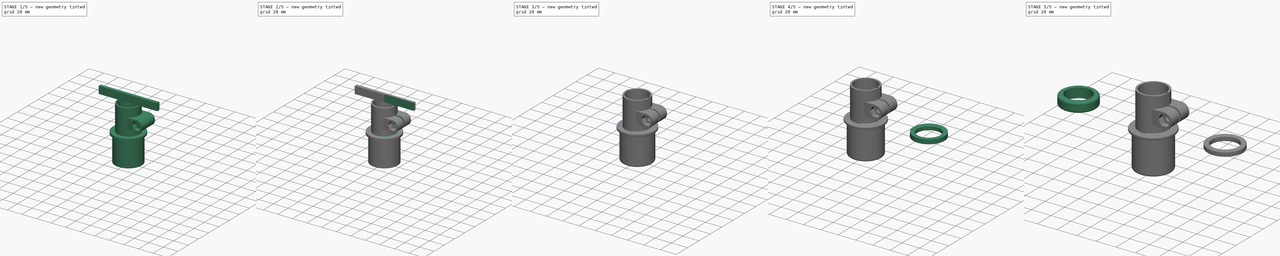
[diagram: build sequence overview — one tinted view per stage of 5, left to right]
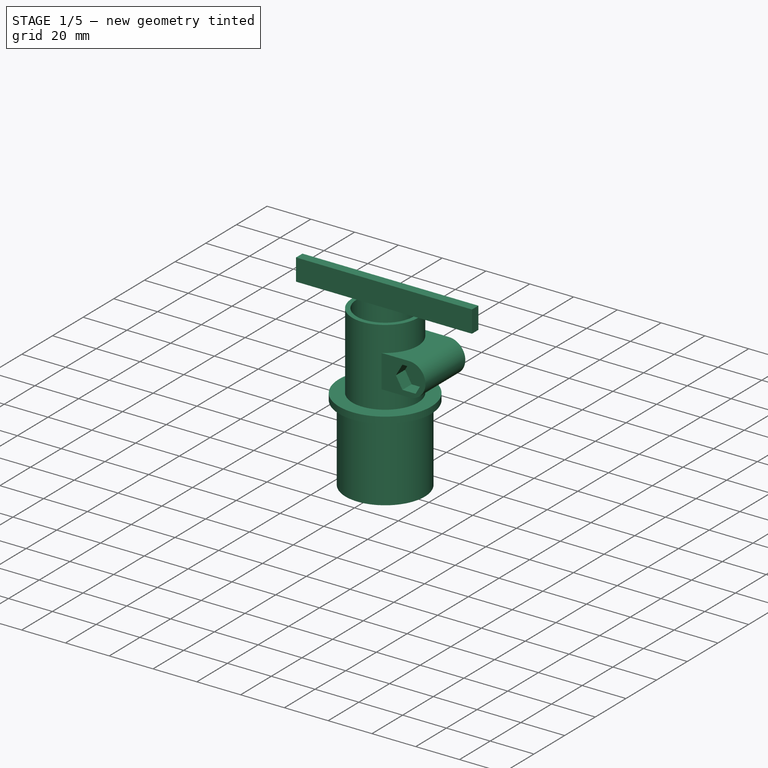
[diagram: stage 1 of 5 — iso view after this stage's code; geometry added in this stage tinted green]
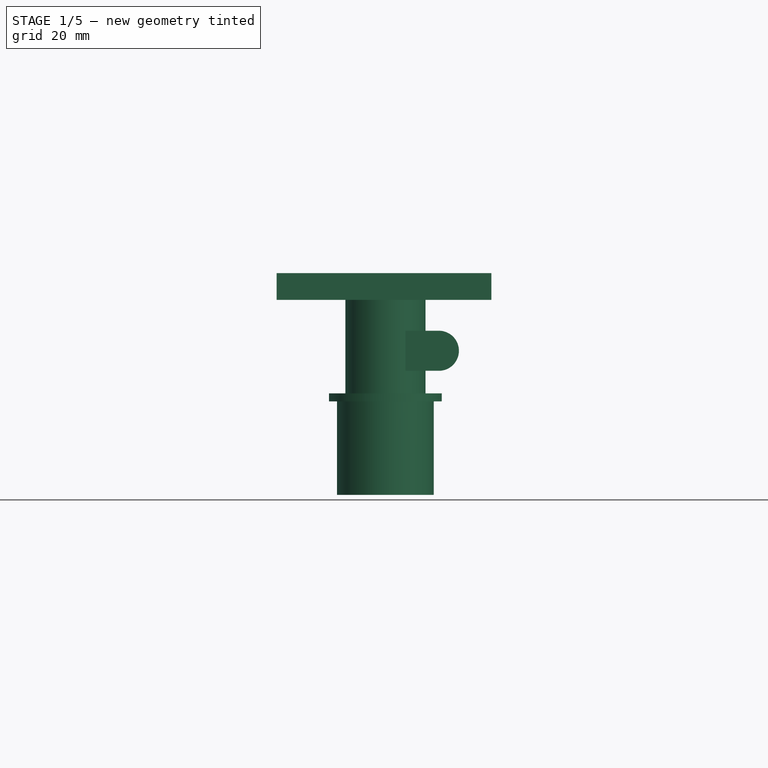
[diagram: stage 1 of 5 — front view after this stage's code; geometry added in this stage tinted green]
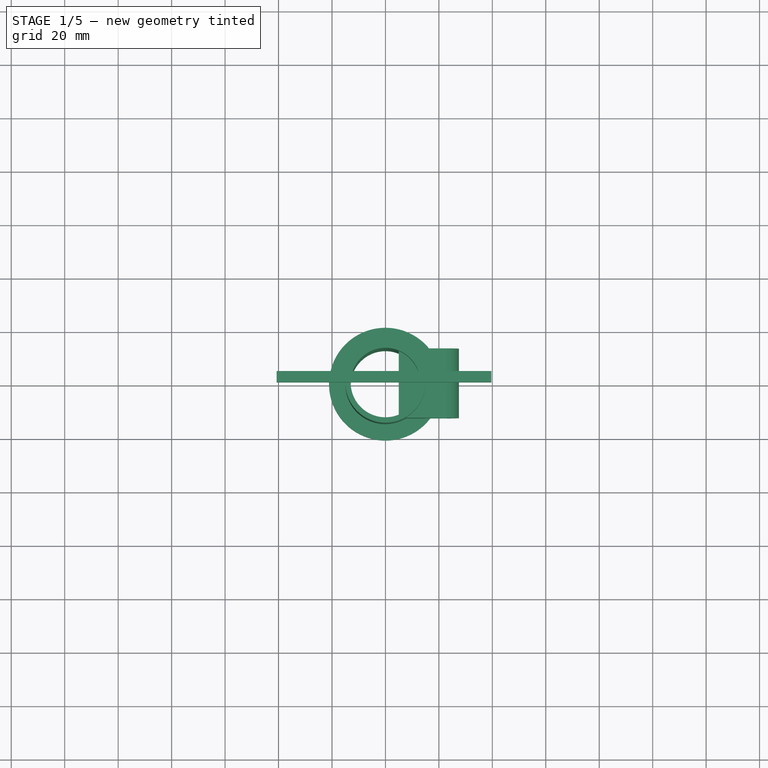
[diagram: stage 1 of 5 — top view after this stage's code; geometry added in this stage tinted green]
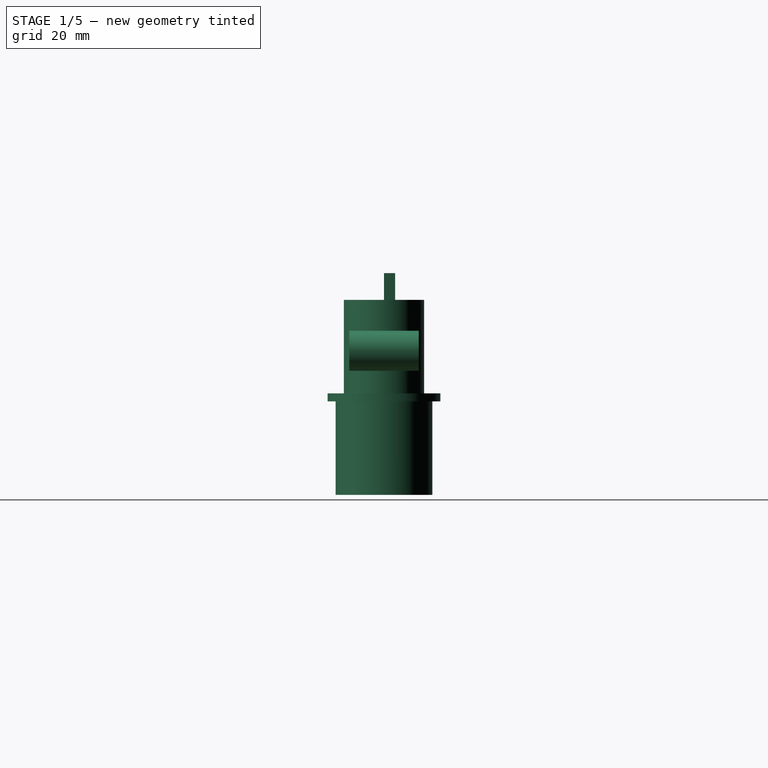
[diagram: stage 1 of 5 — right view after this stage's code; geometry added in this stage tinted green]
FCSTD DOCUMENT  (FreeCAD 0.16R6712 (Git))
Label: Porte plateau
License: All rights reserved
LicenseURL: http://en.wikipedia.org/wiki/All_rights_reserved
objects: Sketcher::SketchObject×11, PartDesign::Fillet×8, PartDesign::Pocket×6, PartDesign::Pad×4, PartDesign::Revolution×1, PartDesign::Mirrored×1
note: 42 computed .brp shape members not serialized (recipe doc carries the construction recipe); baked Part::Feature solids carry a one-line shape summary decoded from their .brp

FEATURE [Sketcher::SketchObject] Sketch
  Placement = pos=(0,0,0) rot=(1,0,0;1.5708rad)
  sketch-geometry (8):
    g0: LineSegment StartX=13 StartY=35 StartZ=0 EndX=13 EndY=-38 EndZ=0
    g1: LineSegment StartX=13 StartY=-38 StartZ=0 EndX=18.1 EndY=-38 EndZ=0
    g2: LineSegment StartX=18.1 StartY=-38 StartZ=0 EndX=18.1 EndY=-3 EndZ=0
    g3: LineSegment StartX=13 StartY=35 StartZ=0 EndX=15 EndY=35 EndZ=0
    g4: LineSegment StartX=15 StartY=35 StartZ=0 EndX=15 EndY=0 EndZ=0
    g5: LineSegment StartX=15 StartY=0 StartZ=0 EndX=21.1 EndY=0 EndZ=0
    g6: LineSegment StartX=18.1 StartY=-3 StartZ=0 EndX=21.1 EndY=-3 EndZ=0
    g7: LineSegment StartX=21.1 StartY=-3 StartZ=0 EndX=21.1 EndY=0 EndZ=0
  constraints (24):
    c: Vertical(g0)
    c: Coincident(g0,g1)
    c: Horizontal(g1)
    c: Coincident(g1,g2)
    c: Vertical(g2)
    c: Coincident(g0,g3)
    c: Horizontal(g3)
    c: Coincident(g3,g4)
    c: Vertical(g4)
    c: Coincident(g4,g5)
    c: Horizontal(g5)
    c: Coincident(g6,g2)
    c: Horizontal(g6)
    c: Coincident(g7,g6)
    c: Coincident(g7,g5)
    c: Vertical(g7)
    c: DistanceX(g-1,g0) = 13
    c: DistanceX(g-1,g1) = 18.1
    c: DistanceY(g1,g2) = 35
    c: DistanceY(g6,g5) = 3
    c: DistanceY(g4,g3) = 35
    c: PointOnObject(g4,g-1)
    c: DistanceX(g0,g3) = 2
    c: DistanceX(g2,g6) = 3
FEATURE [PartDesign::Revolution] Revolution  label="Cylindre"
  Angle = 360
  Axis = (0,0,1)
  Base = (0,0,0)
  Placement = pos=(0,0,0) rot=(1,0,0;1.5708rad)
  ReferenceAxis = -> Sketch [V_Axis]
  Reversed = true
  Sketch = -> Sketch
FEATURE [Sketcher::SketchObject] Sketch001
  Placement = pos=(0,0,35) rot=(0,0,1;3.14159rad)
  Support = -> Revolution [Face8]
  sketch-geometry (4):
    g0: LineSegment StartX=-39.6444 StartY=0 StartZ=0 EndX=40.704 EndY=0 EndZ=0
    g1: LineSegment StartX=40.704 StartY=0 StartZ=0 EndX=40.704 EndY=-4.16347 EndZ=0
    g2: LineSegment StartX=40.704 StartY=-4.16347 StartZ=0 EndX=-39.6444 EndY=-4.16347 EndZ=0
    g3: LineSegment StartX=-39.6444 StartY=-4.16347 StartZ=0 EndX=-39.6444 EndY=0 EndZ=0
  constraints (9):
    c: Coincident(g0,g1)
    c: Coincident(g1,g2)
    c: Coincident(g2,g3)
    c: Coincident(g3,g0)
    c: Horizontal(g0)
    c: Horizontal(g2)
    c: Vertical(g1)
    c: Vertical(g3)
    c: PointOnObject(g0,g-1)
FEATURE [PartDesign::Pad] Pad  label="Baguette de plan"
  Length = 10
  Length2 = 100
  Placement = pos=(0,0,0) rot=(1,0,0;1.5708rad)
  Sketch = -> Sketch001
  Type = 0
FEATURE [Sketcher::SketchObject] Sketch002
  ExternalGeometry = -> [Pad]
  Placement = pos=(0,0,0) rot=(1,0,0;1.5708rad)
  Support = -> Pad [Face8]
  sketch-geometry (5):
    g0: LineSegment StartX=20 StartY=23.436 StartZ=0 EndX=5 EndY=23.436 EndZ=0
    g1: LineSegment StartX=5 StartY=23.436 StartZ=0 EndX=5 EndY=8.436 EndZ=0
    g2: LineSegment StartX=5 StartY=8.436 StartZ=0 EndX=20 EndY=8.436 EndZ=0
    g3: LineSegment [constr] StartX=20 StartY=23.436 StartZ=0 EndX=20 EndY=8.436 EndZ=0
    g4: ArcOfCircle CenterX=20 CenterY=15.936 CenterZ=0 NormalX=0 NormalY=0 NormalZ=1 Radius=7.5 StartAngle=4.71239 EndAngle=7.85398
  constraints (15):
    c: Horizontal(g0)
    c: Coincident(g0,g1)
    c: Vertical(g1)
    c: Coincident(g1,g2)
    c: Horizontal(g2)
    c: Coincident(g3,g0)
    c: Coincident(g3,g2)
    c: Vertical(g3)
    c: PointOnObject(g4,g3)
    c: Coincident(g4,g0)
    c: Coincident(g4,g2)
    c: DistanceY(g1,g0) = 15
    c: DistanceX(g0,g0) = 15
    c: DistanceY(g0,g-3) = 11.564
    c: DistanceX(g0,g-3) = 10
FEATURE [PartDesign::Pad] Pad001  label="Porte vis"
  Length = 26
  Length2 = 100
  Midplane = true
  Placement = pos=(0,0,0) rot=(1,0,0;1.5708rad)
  Sketch = -> Sketch002
  Type = 0
FEATURE [Sketcher::SketchObject] Sketch003
  ExternalGeometry = -> [Pad001]
  Placement = pos=(0,-13,0) rot=(1,0,0;1.5708rad)
  Support = -> Pad001 [Face21]
  sketch-geometry (12):
    g0: LineSegment StartX=23.0022 StartY=10.736 StartZ=0 EndX=26.0044 EndY=15.936 EndZ=0
    g1: LineSegment StartX=26.0044 StartY=15.936 StartZ=0 EndX=23.0022 EndY=21.136 EndZ=0
    g2: LineSegment StartX=23.0022 StartY=21.136 StartZ=0 EndX=16.9978 EndY=21.136 EndZ=0
    g3: LineSegment StartX=16.9978 StartY=21.136 StartZ=0 EndX=13.9956 EndY=15.936 EndZ=0
    g4: LineSegment StartX=13.9956 StartY=15.936 StartZ=0 EndX=16.9978 EndY=10.736 EndZ=0
    g5: LineSegment StartX=16.9978 StartY=10.736 StartZ=0 EndX=23.0022 EndY=10.736 EndZ=0
    g6: Circle [constr] CenterX=20 CenterY=15.936 CenterZ=0 NormalX=0 NormalY=0 NormalZ=1 Radius=6.00444
    g7: LineSegment [constr] StartX=7.48331 StartY=23.436 StartZ=0 EndX=20 EndY=8.436 EndZ=0
    g8: LineSegment [constr] StartX=7.48331 StartY=8.436 StartZ=0 EndX=20 EndY=23.436 EndZ=0
    g9: LineSegment [constr] StartX=20 StartY=23.436 StartZ=0 EndX=20 EndY=8.436 EndZ=0
    g10: GeomPoint [constr] X=13.7417 Y=15.936 Z=0
    g11: LineSegment [constr] StartX=13.7417 StartY=15.936 StartZ=0 EndX=20 EndY=15.936 EndZ=0
  constraints (27):
    c: Coincident(g0,g1)
    c: Coincident(g1,g2)
    c: Coincident(g2,g3)
    c: Coincident(g3,g4)
    c: Coincident(g4,g5)
    c: Coincident(g5,g0)
    c: Equal(g0, g1-g5) x5
    c: PointOnObject(g0,g6)
    c: PointOnObject(g1,g6)
    c: PointOnObject(g2,g6)
    c: PointOnObject(g3,g6)
    c: PointOnObject(g4,g6)
    c: PointOnObject(g5,g6)
    c: Coincident(g7,g-3)
    c: Coincident(g7,g-4)
    c: Coincident(g8,g-4)
    c: Coincident(g8,g-3)
    c: Coincident(g9,g8)
    c: Coincident(g9,g7)
    c: PointOnObject(g10,g7)
    c: PointOnObject(g10,g8)
    c: Coincident(g11,g10)
    c: PointOnObject(g11,g9)
    c: Horizontal(g11)
    c: Coincident(g6,g11)
    c: PointOnObject(g3,g11)
    c: DistanceY(g0,g1) = 10.4
FEATURE [PartDesign::Pocket] Pocket  label="Ecrou"
  Length = 6
  Placement = pos=(0,0,0) rot=(1,0,0;1.5708rad)
  Sketch = -> Sketch003
  Type = 0
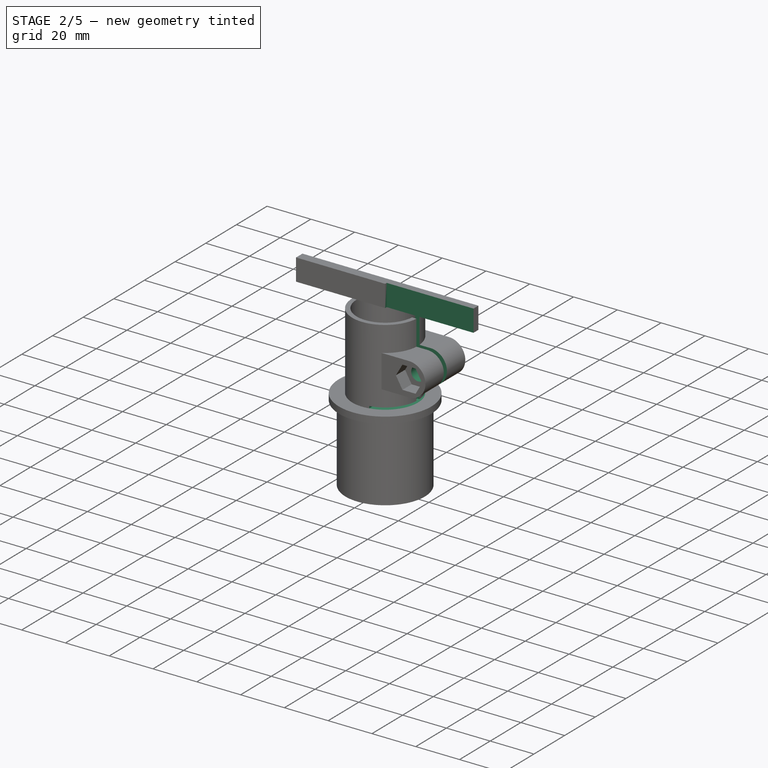
[diagram: stage 2 of 5 — iso view after this stage's code; geometry added in this stage tinted green]
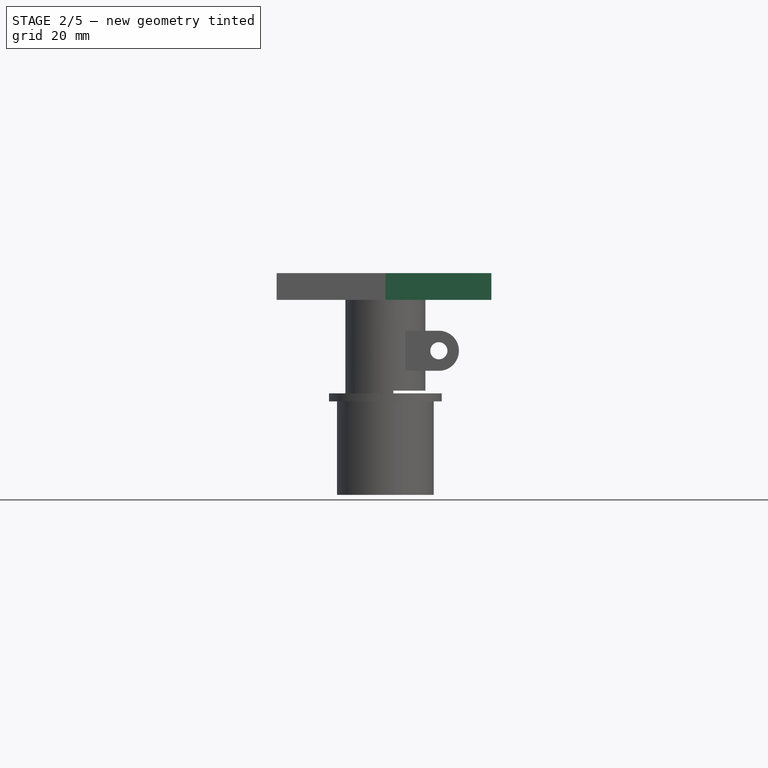
[diagram: stage 2 of 5 — front view after this stage's code; geometry added in this stage tinted green]
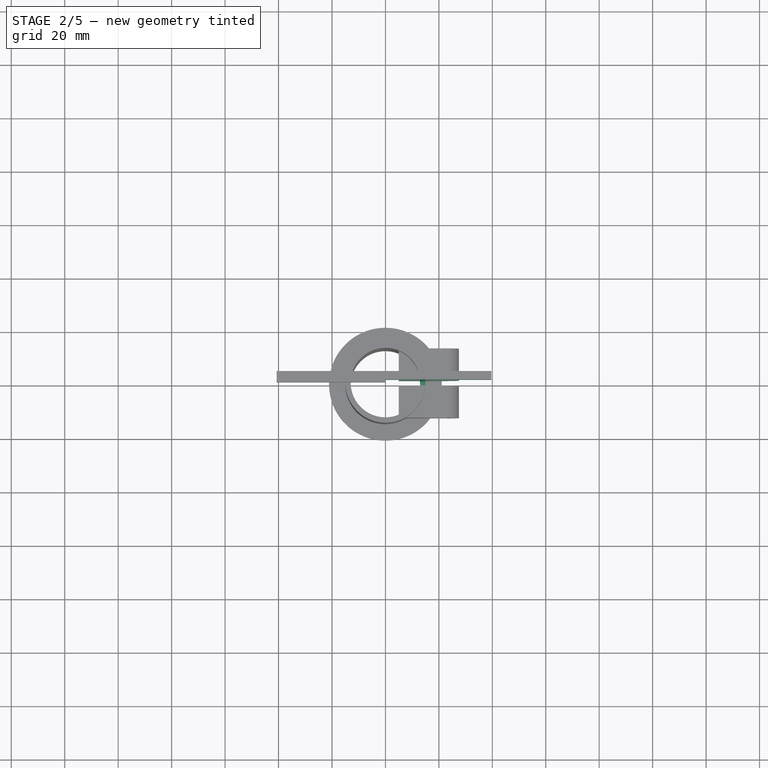
[diagram: stage 2 of 5 — top view after this stage's code; geometry added in this stage tinted green]
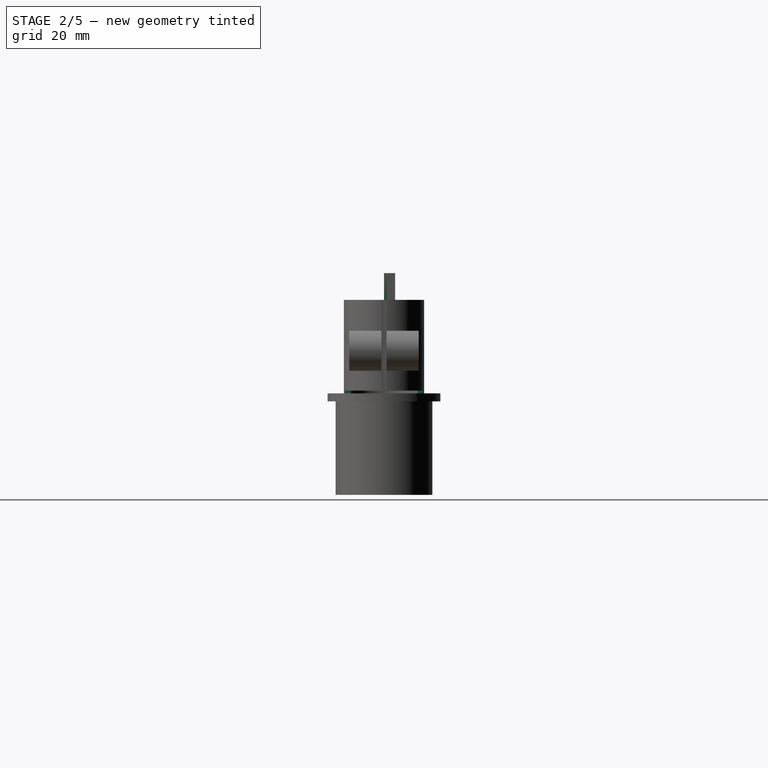
[diagram: stage 2 of 5 — right view after this stage's code; geometry added in this stage tinted green]
FEATURE [PartDesign::Mirrored] Mirrored
  MirrorPlane = -> Pocket [Face11]
  Originals = -> [Pocket]
  Placement = pos=(0,0,0) rot=(1,0,0;1.5708rad)
FEATURE [Sketcher::SketchObject] Sketch004
  ExternalGeometry = -> [Mirrored]
  Placement = pos=(0,-13,0) rot=(1,0,0;1.5708rad)
  Support = -> Mirrored [Face21]
  sketch-geometry (4):
    g0: LineSegment [constr] StartX=16.9978 StartY=21.136 StartZ=0 EndX=23.0022 EndY=10.736 EndZ=0
    g1: LineSegment [constr] StartX=16.9978 StartY=10.736 StartZ=0 EndX=23.0022 EndY=21.136 EndZ=0
    g2: GeomPoint [constr] X=20 Y=15.936 Z=0
    g3: Circle CenterX=20 CenterY=15.936 CenterZ=0 NormalX=0 NormalY=0 NormalZ=1 Radius=3.2
  constraints (8):
    c: Coincident(g0,g-3)
    c: Coincident(g0,g-4)
    c: Coincident(g1,g-4)
    c: Coincident(g1,g-3)
    c: PointOnObject(g2,g0)
    c: PointOnObject(g2,g1)
    c: Coincident(g3,g2)
    c: Radius(g3) = 3.2
FEATURE [PartDesign::Pocket] Pocket001  label="Puit"
  Length = 5
  Placement = pos=(0,0,0) rot=(1,0,0;1.5708rad)
  Sketch = -> Sketch004
  Type = 1
FEATURE [Sketcher::SketchObject] Sketch005
  Placement = pos=(0,0,0) rot=(0,0,1;3.14159rad)
  Support = -> Pocket001 [Face23]
  sketch-geometry (4):
    g0: LineSegment StartX=-40.0614 StartY=1 StartZ=0 EndX=0 EndY=1 EndZ=0
    g1: LineSegment StartX=0 StartY=1 StartZ=0 EndX=0 EndY=-1 EndZ=0
    g2: LineSegment StartX=0 StartY=-1 StartZ=0 EndX=-40.0614 EndY=-1 EndZ=0
    g3: LineSegment StartX=-40.0614 StartY=-1 StartZ=0 EndX=-40.0614 EndY=1 EndZ=0
  constraints (11):
    c: Coincident(g0,g1)
    c: Coincident(g1,g2)
    c: Coincident(g2,g3)
    c: Coincident(g3,g0)
    c: Horizontal(g0)
    c: Horizontal(g2)
    c: Vertical(g1)
    c: Vertical(g3)
    c: Symmetric(g0,g2,g-1)
    c: PointOnObject(g0,g-2)
    c: DistanceY(g2,g0) = 2
FEATURE [PartDesign::Pocket] Pocket002  label="Fente verticale"
  Length = 5
  Placement = pos=(0,0,0) rot=(1,0,0;1.5708rad)
  Reversed = true
  Sketch = -> Sketch005
  Type = 1
FEATURE [Sketcher::SketchObject] Sketch006
  Placement = pos=(0,0,0) rot=(0,0,1;3.14159rad)
  Support = -> Pocket002 [Face37]
  sketch-geometry (4):
    g0: LineSegment StartX=-3 StartY=16.6936 StartZ=0 EndX=-41.8768 EndY=16.6936 EndZ=0
    g1: LineSegment StartX=-41.8768 StartY=16.6936 StartZ=0 EndX=-41.8768 EndY=-16.6936 EndZ=0
    g2: LineSegment StartX=-41.8768 StartY=-16.6936 StartZ=0 EndX=-3 EndY=-16.6936 EndZ=0
    g3: LineSegment StartX=-3 StartY=-16.6936 StartZ=0 EndX=-3 EndY=16.6936 EndZ=0
  constraints (10):
    c: Coincident(g0,g1)
    c: Coincident(g1,g2)
    c: Coincident(g2,g3)
    c: Coincident(g3,g0)
    c: Horizontal(g0)
    c: Horizontal(g2)
    c: Vertical(g1)
    c: Vertical(g3)
    c: Symmetric(g0,g1,g-1)
    c: DistanceX(g0,g-1) = 3
FEATURE [PartDesign::Pocket] Pocket003  label="Fente horizontale"
  Length = 1
  Placement = pos=(0,0,0) rot=(1,0,0;1.5708rad)
  Reversed = true
  Sketch = -> Sketch006
  Type = 0
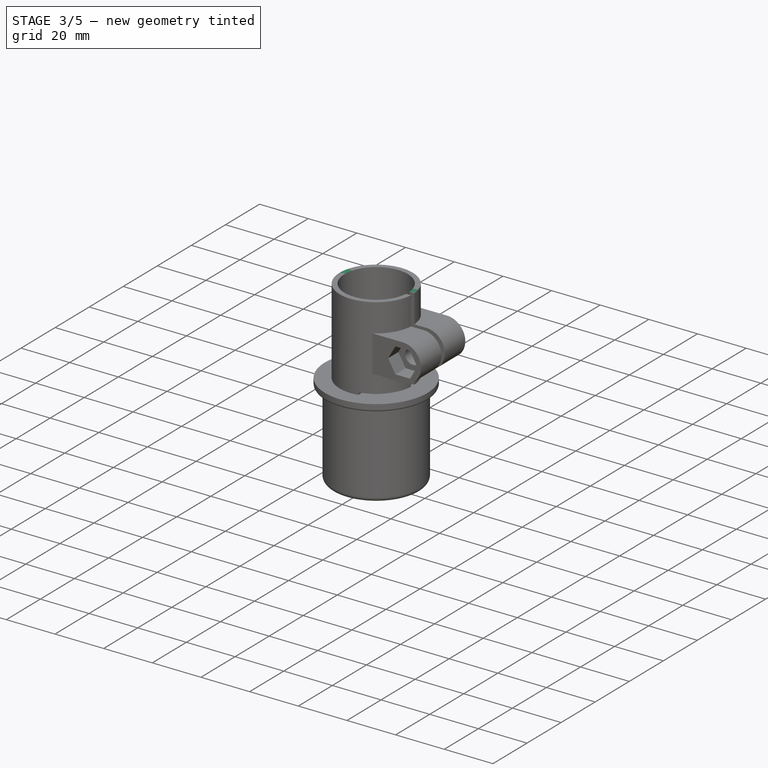
[diagram: stage 3 of 5 — iso view after this stage's code; geometry added in this stage tinted green]
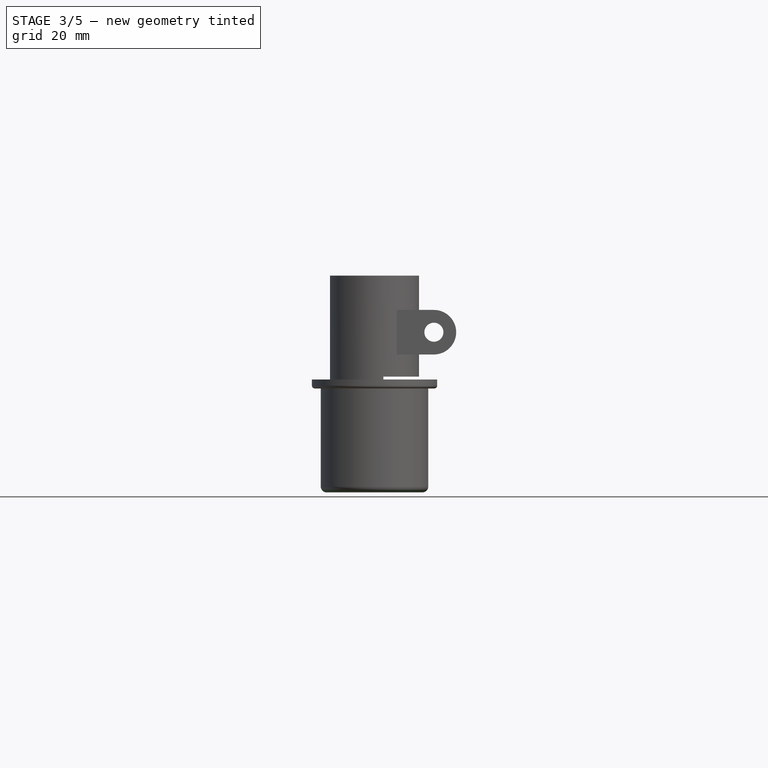
[diagram: stage 3 of 5 — front view after this stage's code; geometry added in this stage tinted green]
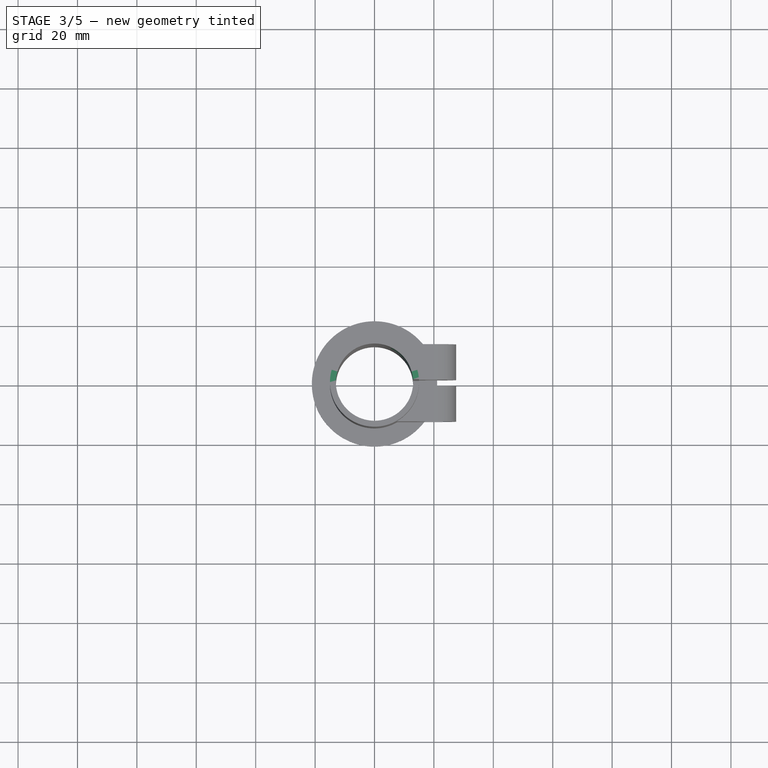
[diagram: stage 3 of 5 — top view after this stage's code; geometry added in this stage tinted green]
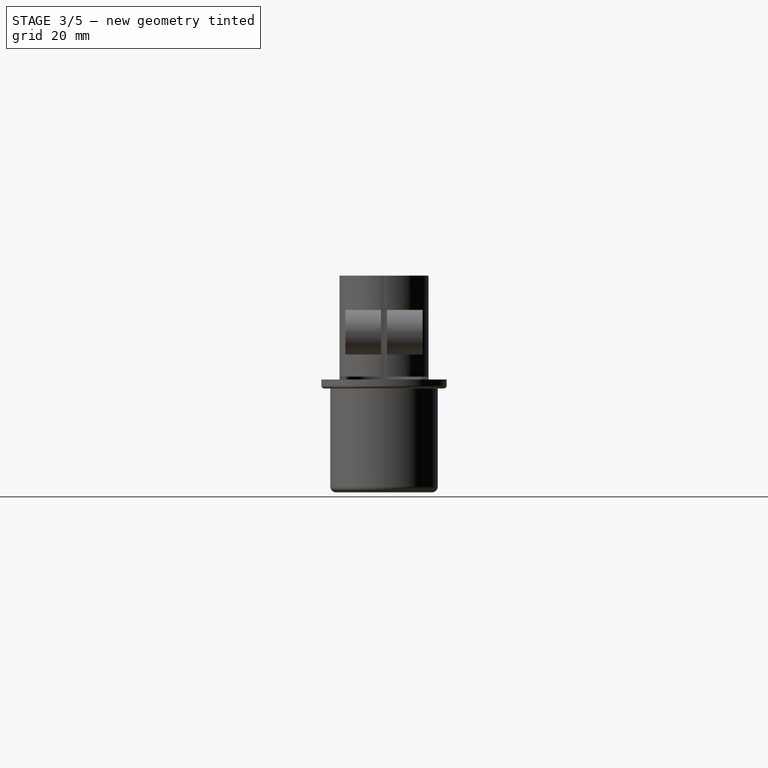
[diagram: stage 3 of 5 — right view after this stage's code; geometry added in this stage tinted green]
FEATURE [Sketcher::SketchObject] Sketch007
  ExternalGeometry = -> [Pocket003]
  Placement = pos=(0,0,-38) rot=(1,0,0;3.14159rad)
  Support = -> Pocket003 [Face1]
  sketch-geometry (1):
    g0: Circle CenterX=0 CenterY=0 CenterZ=0 NormalX=0 NormalY=0 NormalZ=1 Radius=13
  constraints (2):
    c: Coincident(g0,g-1)
    c: Tangent(g0,g-3)
FEATURE [PartDesign::Pocket] Pocket004  label="Puit central"
  Length = 5
  Placement = pos=(0,0,0) rot=(1,0,0;1.5708rad)
  Sketch = -> Sketch007
  Type = 1
FEATURE [Sketcher::SketchObject] Sketch008
  ExternalGeometry = -> [Pocket004]
  Placement = pos=(0,0,45) rot=(0,0,1;3.14159rad)
  Support = -> Pocket004 [Face35]
  sketch-geometry (4):
    g0: LineSegment StartX=-39.6444 StartY=0 StartZ=0 EndX=40.704 EndY=0 EndZ=0
    g1: LineSegment StartX=40.704 StartY=0 StartZ=0 EndX=40.704 EndY=-4.16347 EndZ=0
    g2: LineSegment StartX=40.704 StartY=-4.16347 StartZ=0 EndX=-39.6444 EndY=-4.16347 EndZ=0
    g3: LineSegment StartX=-39.6444 StartY=-4.16347 StartZ=0 EndX=-39.6444 EndY=0 EndZ=0
  constraints (10):
    c: Coincident(g0,g1)
    c: Coincident(g2,g3)
    c: Coincident(g3,g0)
    c: Horizontal(g0)
    c: Horizontal(g2)
    c: Vertical(g1)
    c: Vertical(g3)
    c: Coincident(g0,g-4)
    c: Coincident(g2,g1)
    c: Coincident(g2,g-3)
FEATURE [PartDesign::Pocket] Pocket005  label="Suppression baguette de plan"
  Length = 10
  Placement = pos=(0,0,0) rot=(1,0,0;1.5708rad)
  Sketch = -> Sketch008
  Type = 0
FEATURE [PartDesign::Fillet] Fillet005
  Base = -> Pocket005 [Edge1]
  Placement = pos=(0,0,0) rot=(1,0,0;1.5708rad)
  Radius = 2
FEATURE [PartDesign::Fillet] Fillet006
  Base = -> Fillet005 [Edge69]
  Placement = pos=(0,0,0) rot=(1,0,0;1.5708rad)
  Radius = 1
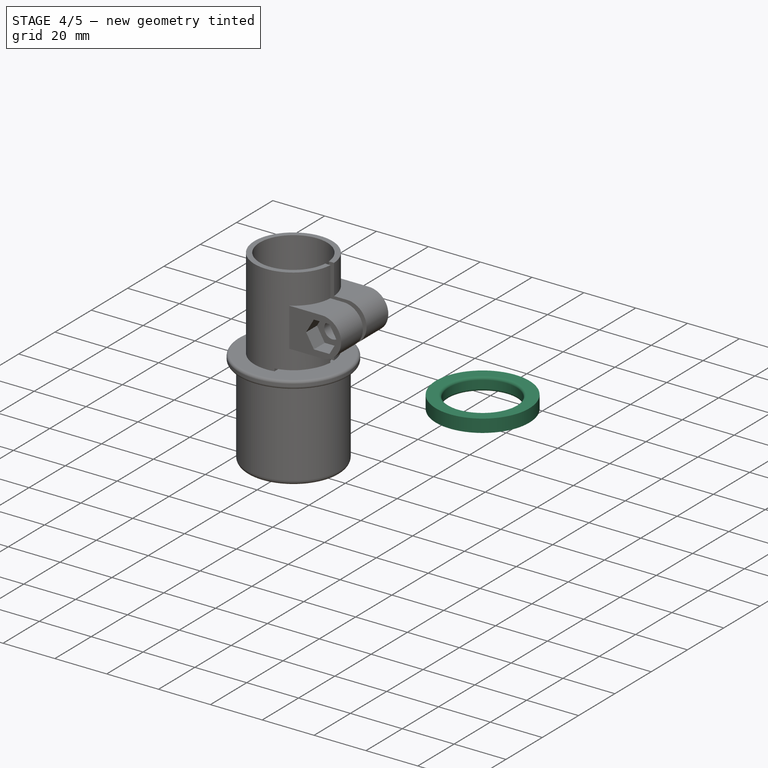
[diagram: stage 4 of 5 — iso view after this stage's code; geometry added in this stage tinted green]
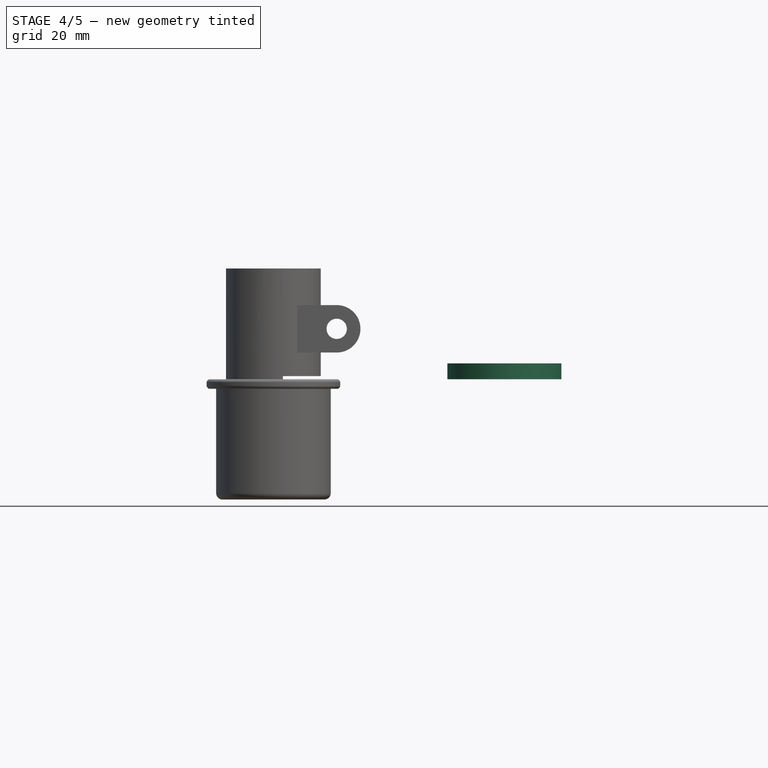
[diagram: stage 4 of 5 — front view after this stage's code; geometry added in this stage tinted green]
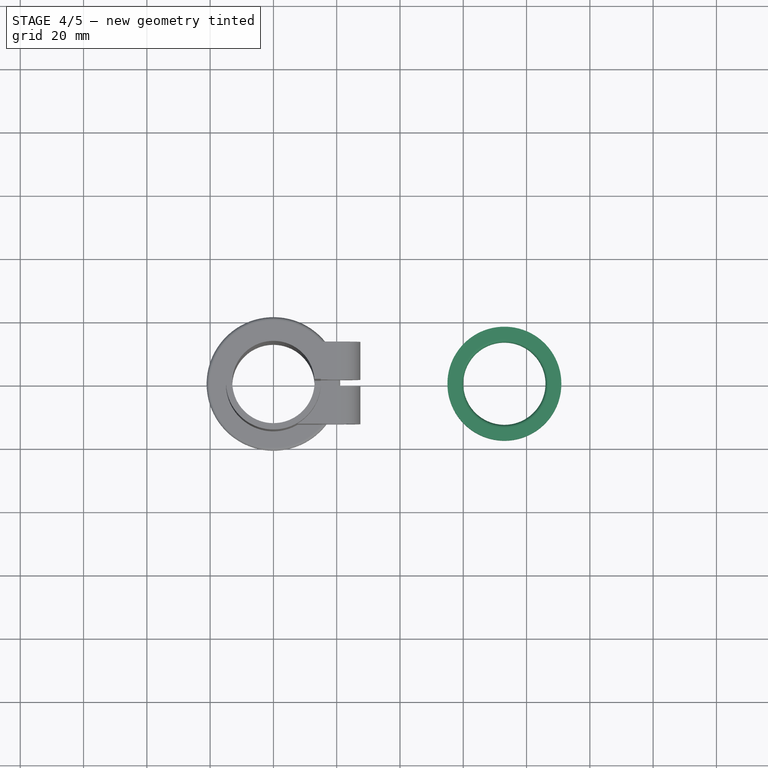
[diagram: stage 4 of 5 — top view after this stage's code; geometry added in this stage tinted green]
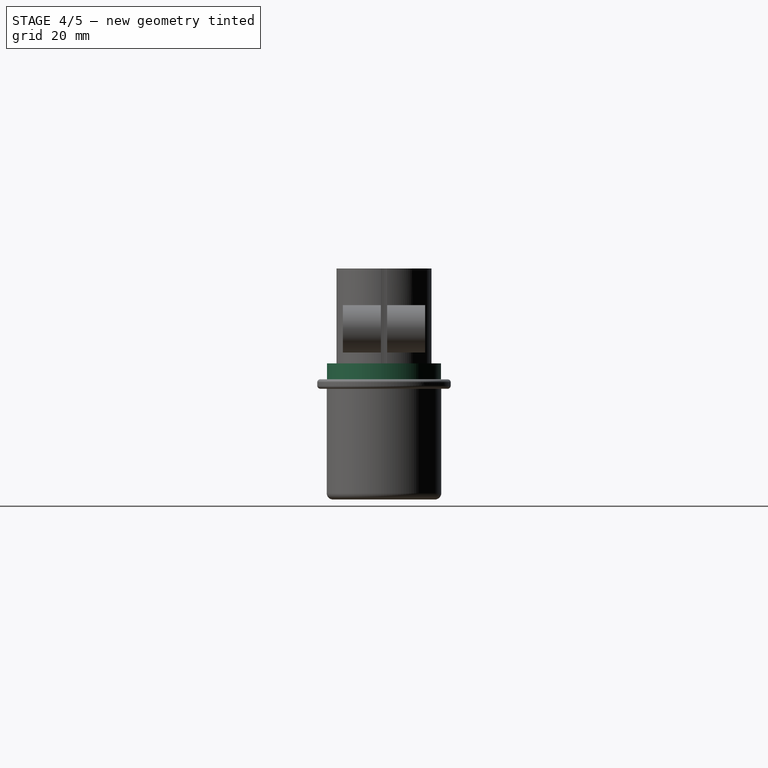
[diagram: stage 4 of 5 — right view after this stage's code; geometry added in this stage tinted green]
FEATURE [Sketcher::SketchObject] Sketch010
  sketch-geometry (2):
    g0: Circle CenterX=72.9888 CenterY=0 CenterZ=0 NormalX=0 NormalY=0 NormalZ=1 Radius=13
    g1: Circle CenterX=72.9888 CenterY=0 CenterZ=0 NormalX=0 NormalY=0 NormalZ=1 Radius=18
  constraints (4):
    c: PointOnObject(g0,g-1)
    c: Coincident(g1,g0)
    c: Radius(g0) = 13
    c: Radius(g1) = 18
FEATURE [PartDesign::Pad] Pad003  label="Proto"
  Length = 5
  Length2 = 100
  Sketch = -> Sketch010
  Type = 0
FEATURE [PartDesign::Fillet] Fillet002
  Base = -> Pad003 [Edge6]
  Radius = 1
FEATURE [PartDesign::Fillet] Fillet003
  Base = -> Fillet002 [Edge3]
  Radius = 1
FEATURE [PartDesign::Fillet] Fillet007
  Base = -> Fillet006 [Edge11,Edge9,Edge8,Edge10,Edge12]
  Placement = pos=(0,0,0) rot=(1,0,0;1.5708rad)
  Radius = 1
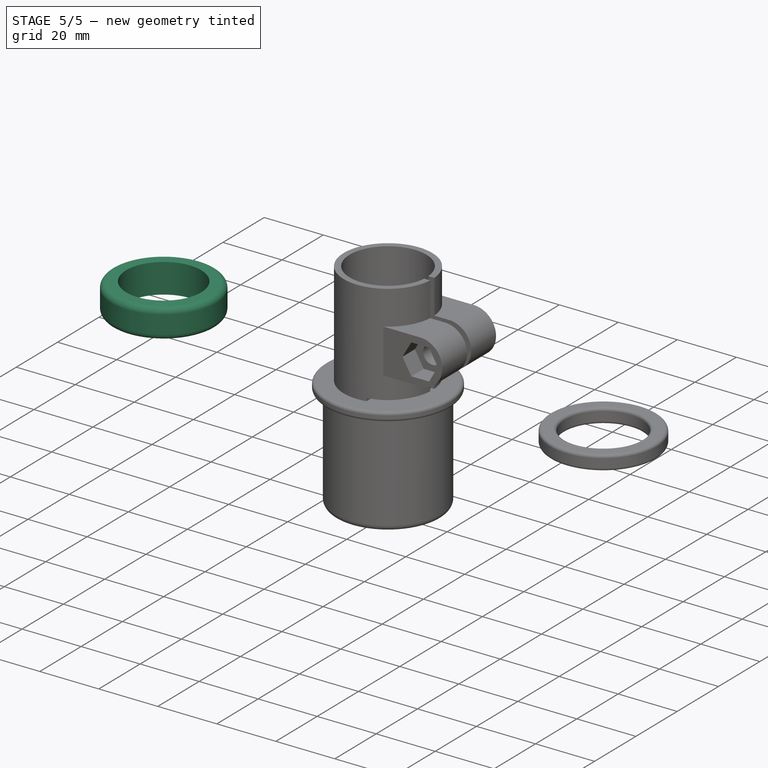
[diagram: stage 5 of 5 — iso view after this stage's code; geometry added in this stage tinted green]
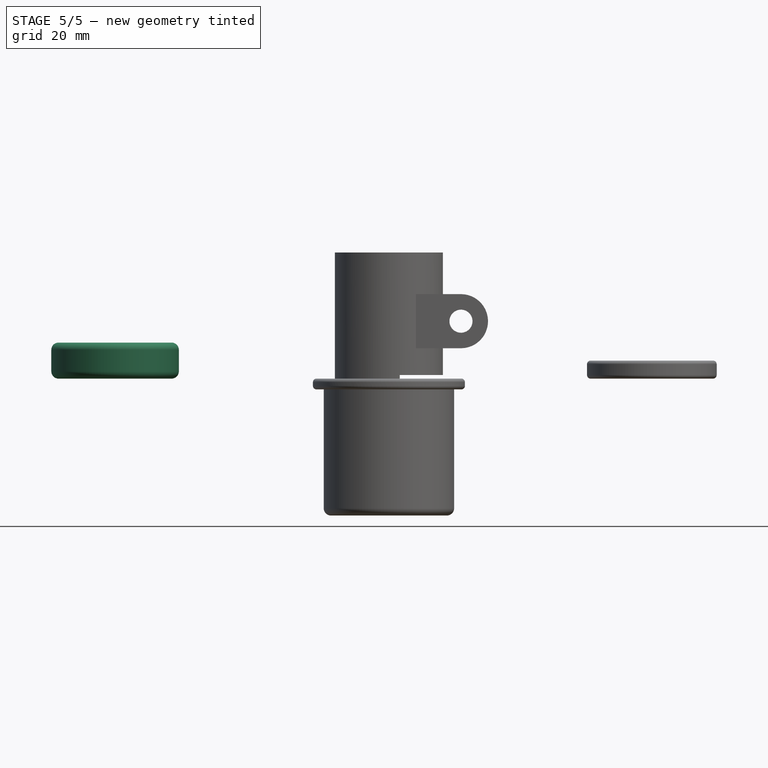
[diagram: stage 5 of 5 — front view after this stage's code; geometry added in this stage tinted green]
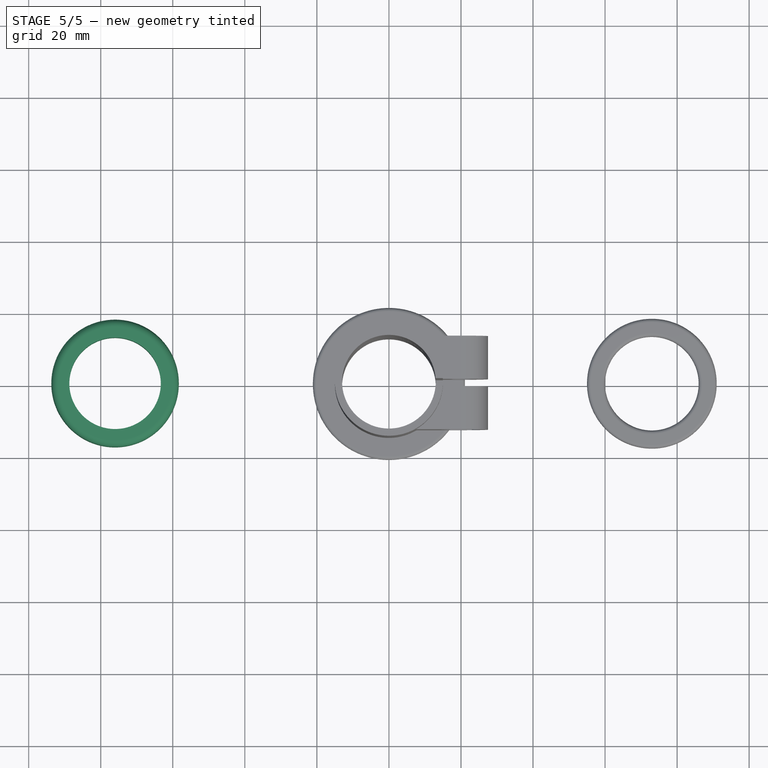
[diagram: stage 5 of 5 — top view after this stage's code; geometry added in this stage tinted green]
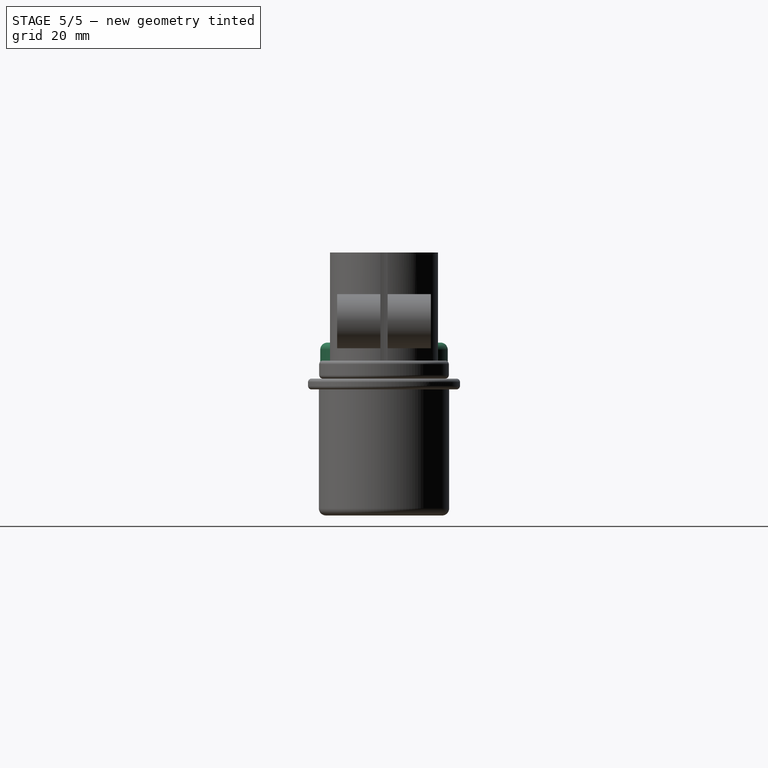
[diagram: stage 5 of 5 — right view after this stage's code; geometry added in this stage tinted green]
FEATURE [Sketcher::SketchObject] Sketch009
  sketch-geometry (2):
    g0: Circle CenterX=-76.0198 CenterY=0 CenterZ=0 NormalX=0 NormalY=0 NormalZ=1 Radius=12.7
    g1: Circle CenterX=-76.0198 CenterY=0 CenterZ=0 NormalX=0 NormalY=0 NormalZ=1 Radius=17.7
  constraints (4):
    c: PointOnObject(g0,g-1)
    c: Coincident(g1,g0)
    c: Radius(g0) = 12.7
    c: Radius(g1) = 17.7
FEATURE [PartDesign::Pad] Pad002  label="Bague"
  Length = 10
  Length2 = 100
  Sketch = -> Sketch009
  Type = 0
FEATURE [PartDesign::Fillet] Fillet
  Base = -> Pad002 [Edge3]
  Radius = 2
FEATURE [PartDesign::Fillet] Fillet001
  Base = -> Fillet [Edge3]
  Radius = 2
FEATURE [PartDesign::Fillet] Fillet004
  Base = -> Fillet003 [Edge9,Edge8]
  Radius = 1
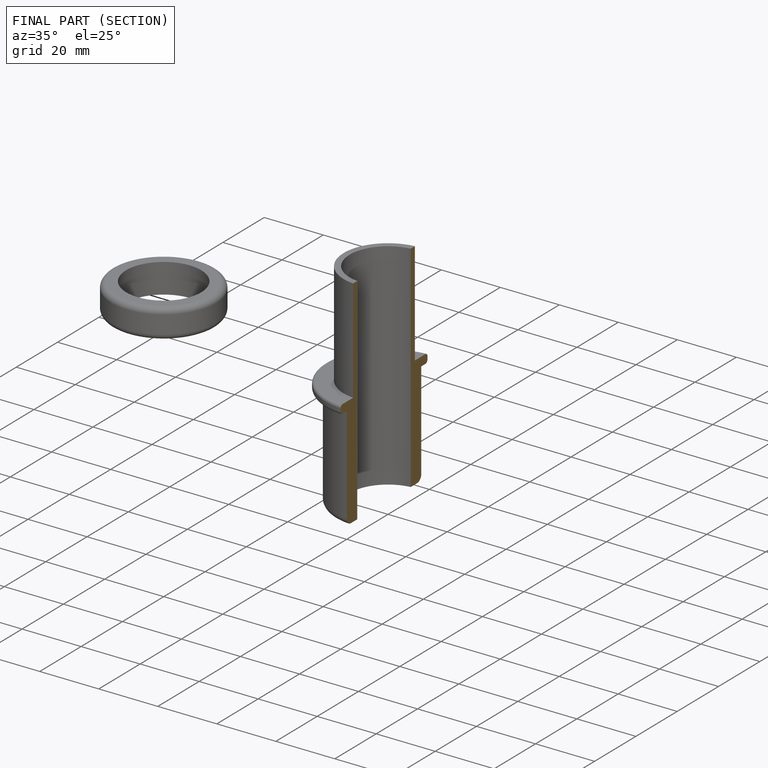
[diagram: finished part — half-section view (interior)]
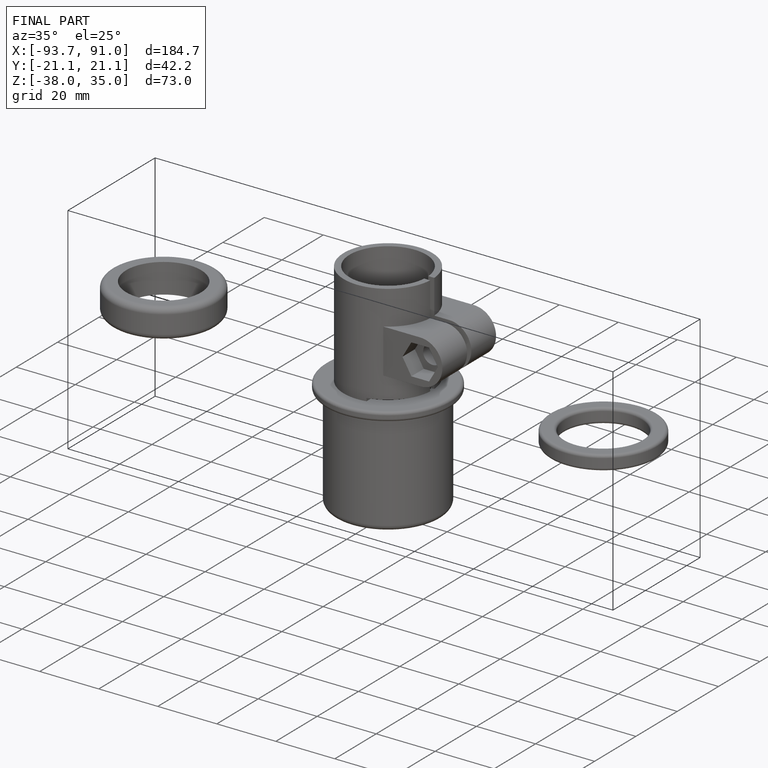
[diagram: finished part — iso view with bounding-box wireframe]
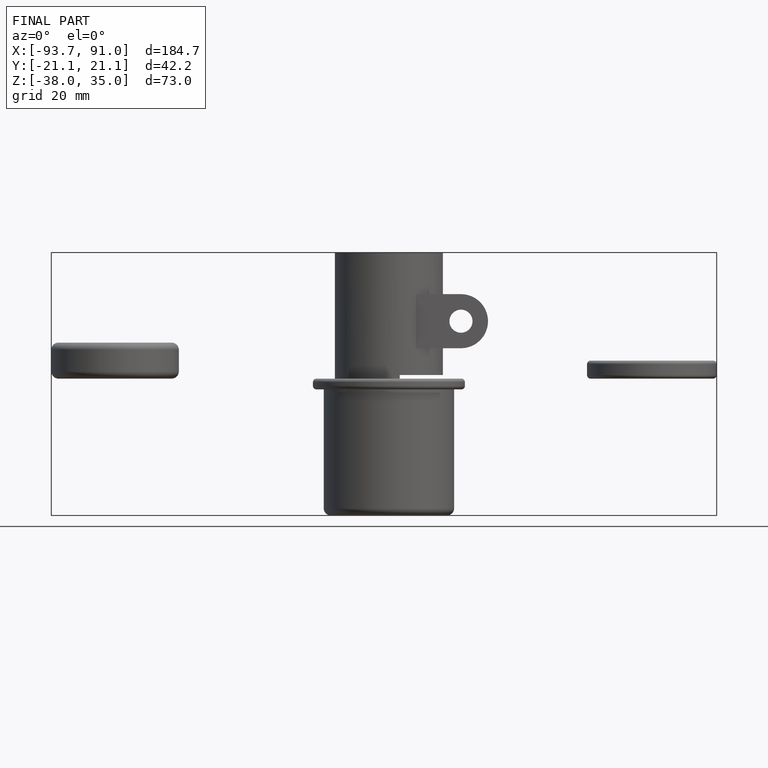
[diagram: finished part — front view with bounding-box wireframe]
